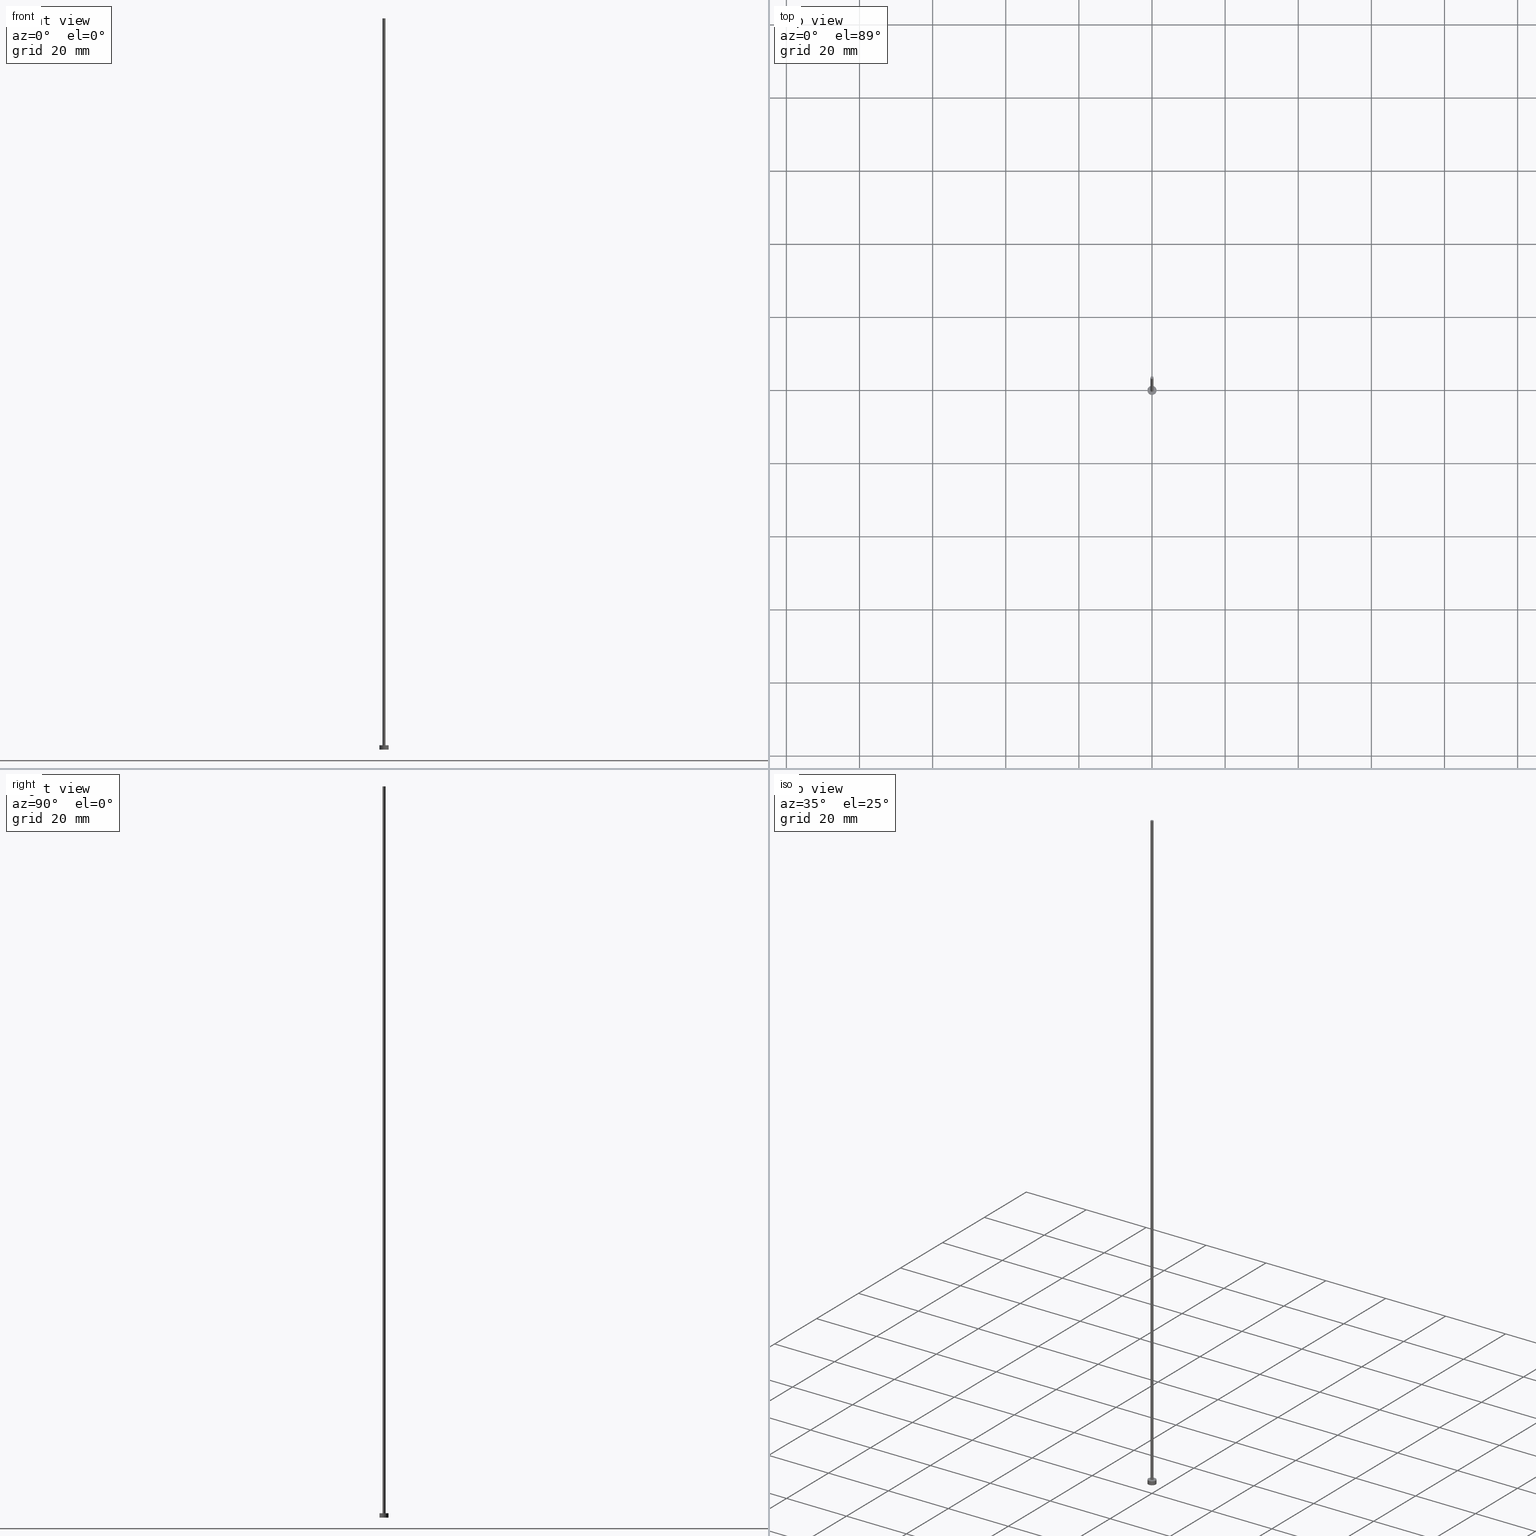
[diagram: canonical four-view strip — front | top / right | iso, engineering-drawing reading convention]
A machine part, canonical four-view strip (front | top / right | iso — engineering-drawing reading convention). The complete STEP part file that produces these views, byte-faithful:
ISO-10303-21;
HEADER;
FILE_DESCRIPTION (( 'STEP AP203' ),
    '1' );
FILE_NAME ('675c.STEP',
    '2026-02-06T12:44:24',
    ( '' ),
    ( '' ),
    'SwSTEP 2.0',
    'SolidWorks 2019',
    '' );
FILE_SCHEMA (( 'CONFIG_CONTROL_DESIGN' ));
ENDSEC;

DATA;
#1 = APPROVAL ( #194, 'NEUR�EN�' ) ;
#2 = LINE ( 'NONE', #25, #108 ) ;
#3 = CIRCLE ( 'NONE', #76, 1.250000000000000000 ) ;
#4 = ORIENTED_EDGE ( 'NONE', *, *, #182, .T. ) ;
#5 = ADVANCED_FACE ( 'NONE', ( #144 ), #219, .T. ) ;
#6 = VERTEX_POINT ( 'NONE', #106 ) ;
#7 = ORIENTED_EDGE ( 'NONE', *, *, #158, .T. ) ;
#8 = VECTOR ( 'NONE', #192, 1000.000000000000000 ) ;
#9 = FACE_OUTER_BOUND ( 'NONE', #169, .T. ) ;
#10 = CARTESIAN_POINT ( 'NONE',  ( 0.000000000000000000, 0.000000000000000000, 0.000000000000000000 ) ) ;
#11 = COORDINATED_UNIVERSAL_TIME_OFFSET ( 1, 0, .AHEAD. ) ;
#12 = DIRECTION ( 'NONE',  ( 0.000000000000000000, 0.000000000000000000, 1.000000000000000000 ) ) ;
#13 = MECHANICAL_CONTEXT ( 'NONE', #145, 'mechanical' ) ;
#14 = VECTOR ( 'NONE', #132, 1000.000000000000000 ) ;
#15 = CARTESIAN_POINT ( 'NONE',  ( -0.4000000000000000222, 0.000000000000000000, 200.0000000000000000 ) ) ;
#16 = DATE_TIME_ROLE ( 'classification_date' ) ;
#17 = DIRECTION ( 'NONE',  ( 0.000000000000000000, 0.000000000000000000, 1.000000000000000000 ) ) ;
#18 = PERSON_AND_ORGANIZATION ( #160, #207 ) ;
#19 = APPROVAL_DATE_TIME ( #42, #1 ) ;
#20 = ADVANCED_FACE ( 'NONE', ( #239 ), #205, .T. ) ;
#21 = SHAPE_DEFINITION_REPRESENTATION ( #177, #66 ) ;
#22 = AXIS2_PLACEMENT_3D ( 'NONE', #120, #136, #191 ) ;
#23 = ORIENTED_EDGE ( 'NONE', *, *, #193, .F. ) ;
#24 = CARTESIAN_POINT ( 'NONE',  ( 0.000000000000000000, 0.000000000000000000, 200.0000000000000000 ) ) ;
#25 = CARTESIAN_POINT ( 'NONE',  ( 1.250000000000000000, 1.530808498934191571E-16, 1.199999999999999956 ) ) ;
#26 = AXIS2_PLACEMENT_3D ( 'NONE', #126, #107, #183 ) ;
#27 = EDGE_CURVE ( 'NONE', #88, #187, #2, .T. ) ;
#28 = DIRECTION ( 'NONE',  ( 0.000000000000000000, 0.000000000000000000, 1.000000000000000000 ) ) ;
#29 = ORIENTED_EDGE ( 'NONE', *, *, #85, .F. ) ;
#30 = CARTESIAN_POINT ( 'NONE',  ( -0.4000000000000000222, 0.000000000000000000, 1.199999999999999956 ) ) ;
#31 = AXIS2_PLACEMENT_3D ( 'NONE', #24, #204, #164 ) ;
#32 = CARTESIAN_POINT ( 'NONE',  ( 0.000000000000000000, 0.000000000000000000, 1.199999999999999956 ) ) ;
#33 = DIRECTION ( 'NONE',  ( 1.000000000000000000, 0.000000000000000000, -0.000000000000000000 ) ) ;
#34 = DIRECTION ( 'NONE',  ( 0.000000000000000000, 0.000000000000000000, 1.000000000000000000 ) ) ;
#35 = DATE_AND_TIME ( #84, #236 ) ;
#36 = CC_DESIGN_PERSON_AND_ORGANIZATION_ASSIGNMENT ( #252, #37, ( #83 ) ) ;
#37 = PERSON_AND_ORGANIZATION_ROLE ( 'design_owner' ) ;
#38 = DIRECTION ( 'NONE',  ( -0.000000000000000000, -0.000000000000000000, -1.000000000000000000 ) ) ;
#39 = APPROVAL_PERSON_ORGANIZATION ( #101, #113, #82 ) ;
#40 = APPROVAL_DATE_TIME ( #216, #113 ) ;
#41 = PRODUCT_RELATED_PRODUCT_CATEGORY ( 'detail', '', ( #83 ) ) ;
#42 = DATE_AND_TIME ( #156, #217 ) ;
#43 = AXIS2_PLACEMENT_3D ( 'NONE', #150, #12, #226 ) ;
#44 = APPROVAL ( #157, 'NEUR�EN�' ) ;
#45 = ORIENTED_EDGE ( 'NONE', *, *, #209, .F. ) ;
#46 = ORIENTED_EDGE ( 'NONE', *, *, #240, .T. ) ;
#47 = ORIENTED_EDGE ( 'NONE', *, *, #240, .F. ) ;
#48 = EDGE_CURVE ( 'NONE', #187, #6, #68, .T. ) ;
#49 = ORIENTED_EDGE ( 'NONE', *, *, #147, .T. ) ;
#50 = AXIS2_PLACEMENT_3D ( 'NONE', #214, #96, #232 ) ;
#51 =( NAMED_UNIT ( * ) PLANE_ANGLE_UNIT ( ) SI_UNIT ( $, .RADIAN. ) );
#52 = APPROVAL_PERSON_ORGANIZATION ( #18, #1, #231 ) ;
#53 = ORIENTED_EDGE ( 'NONE', *, *, #209, .T. ) ;
#54 = CC_DESIGN_PERSON_AND_ORGANIZATION_ASSIGNMENT ( #229, #97, ( #141 ) ) ;
#55 = CARTESIAN_POINT ( 'NONE',  ( 0.000000000000000000, 0.000000000000000000, 200.0000000000000000 ) ) ;
#56 = APPLICATION_CONTEXT ( 'configuration controlled 3d designs of mechanical parts and assemblies' ) ;
#57 = CARTESIAN_POINT ( 'NONE',  ( 0.4000000000000000222, 4.898587196589413075E-17, 200.0000000000000000 ) ) ;
#58 = DIRECTION ( 'NONE',  ( 1.000000000000000000, 0.000000000000000000, 0.000000000000000000 ) ) ;
#59 = CIRCLE ( 'NONE', #143, 0.4000000000000000222 ) ;
#60 = CARTESIAN_POINT ( 'NONE',  ( 0.000000000000000000, 0.000000000000000000, 200.0000000000000000 ) ) ;
#61 = APPROVAL_ROLE ( '' ) ;
#62 = DIRECTION ( 'NONE',  ( 0.000000000000000000, 0.000000000000000000, 1.000000000000000000 ) ) ;
#63 = CC_DESIGN_SECURITY_CLASSIFICATION ( #141, ( #128 ) ) ;
#64 = DATE_TIME_ROLE ( 'creation_date' ) ;
#65 =( GEOMETRIC_REPRESENTATION_CONTEXT ( 3 ) GLOBAL_UNCERTAINTY_ASSIGNED_CONTEXT ( ( #87 ) ) GLOBAL_UNIT_ASSIGNED_CONTEXT ( ( #170, #51, #80 ) ) REPRESENTATION_CONTEXT ( 'NONE', 'WORKASPACE' ) );
#66 = ADVANCED_BREP_SHAPE_REPRESENTATION ( '675c', ( #159, #22 ), #65 ) ;
#67 = ORIENTED_EDGE ( 'NONE', *, *, #27, .T. ) ;
#68 = CIRCLE ( 'NONE', #121, 1.250000000000000000 ) ;
#69 = EDGE_LOOP ( 'NONE', ( #186, #67, #71, #29 ) ) ;
#70 = ORIENTED_EDGE ( 'NONE', *, *, #27, .F. ) ;
#71 = ORIENTED_EDGE ( 'NONE', *, *, #48, .T. ) ;
#72 = DIRECTION ( 'NONE',  ( -0.000000000000000000, -0.000000000000000000, -1.000000000000000000 ) ) ;
#73 = ORIENTED_EDGE ( 'NONE', *, *, #158, .F. ) ;
#74 = CARTESIAN_POINT ( 'NONE',  ( 1.250000000000000000, 1.530808498934191571E-16, 1.199999999999999956 ) ) ;
#75 = FACE_OUTER_BOUND ( 'NONE', #124, .T. ) ;
#76 = AXIS2_PLACEMENT_3D ( 'NONE', #230, #115, #174 ) ;
#77 = PERSON_AND_ORGANIZATION ( #160, #207 ) ;
#78 = PLANE ( 'NONE',  #50 ) ;
#79 = LOCAL_TIME ( 13, 44, 24.00000000000000000, #155 ) ;
#80 =( NAMED_UNIT ( * ) SI_UNIT ( $, .STERADIAN. ) SOLID_ANGLE_UNIT ( ) );
#81 = PLANE ( 'NONE',  #255 ) ;
#82 = APPROVAL_ROLE ( '' ) ;
#83 = PRODUCT ( '675c', '675c', '', ( #13 ) ) ;
#84 = CALENDAR_DATE ( 2026, 6, 2 ) ;
#85 = EDGE_CURVE ( 'NONE', #221, #6, #153, .T. ) ;
#86 = CC_DESIGN_APPROVAL ( #44, ( #128 ) ) ;
#87 = UNCERTAINTY_MEASURE_WITH_UNIT (LENGTH_MEASURE( 1.000000000000000082E-05 ), #170, 'distance_accuracy_value', 'NONE');
#88 = VERTEX_POINT ( 'NONE', #74 ) ;
#89 = AXIS2_PLACEMENT_3D ( 'NONE', #55, #243, #58 ) ;
#90 = DIRECTION ( 'NONE',  ( 0.000000000000000000, 0.000000000000000000, 1.000000000000000000 ) ) ;
#91 = DIRECTION ( 'NONE',  ( 1.000000000000000000, 0.000000000000000000, 0.000000000000000000 ) ) ;
#92 = DIRECTION ( 'NONE',  ( -1.000000000000000000, 0.000000000000000000, 0.000000000000000000 ) ) ;
#93 = CLOSED_SHELL ( 'NONE', ( #5, #20, #253, #189, #103, #166, #235 ) ) ;
#94 = DIRECTION ( 'NONE',  ( -1.000000000000000000, 0.000000000000000000, 0.000000000000000000 ) ) ;
#95 = CALENDAR_DATE ( 2026, 6, 2 ) ;
#96 = DIRECTION ( 'NONE',  ( 0.000000000000000000, 0.000000000000000000, 1.000000000000000000 ) ) ;
#97 = PERSON_AND_ORGANIZATION_ROLE ( 'classification_officer' ) ;
#98 = CARTESIAN_POINT ( 'NONE',  ( 0.000000000000000000, 0.000000000000000000, 1.199999999999999956 ) ) ;
#99 = CC_DESIGN_APPROVAL ( #1, ( #139 ) ) ;
#100 = CC_DESIGN_PERSON_AND_ORGANIZATION_ASSIGNMENT ( #77, #151, ( #128 ) ) ;
#101 = PERSON_AND_ORGANIZATION ( #160, #207 ) ;
#102 = COORDINATED_UNIVERSAL_TIME_OFFSET ( 1, 0, .AHEAD. ) ;
#103 = ADVANCED_FACE ( 'NONE', ( #75 ), #215, .F. ) ;
#104 = PERSON_AND_ORGANIZATION ( #160, #207 ) ;
#105 = VERTEX_POINT ( 'NONE', #154 ) ;
#106 = CARTESIAN_POINT ( 'NONE',  ( -1.250000000000000000, 0.000000000000000000, 0.000000000000000000 ) ) ;
#107 = DIRECTION ( 'NONE',  ( -0.000000000000000000, -0.000000000000000000, -1.000000000000000000 ) ) ;
#108 = VECTOR ( 'NONE', #109, 1000.000000000000000 ) ;
#109 = DIRECTION ( 'NONE',  ( -0.000000000000000000, -0.000000000000000000, -1.000000000000000000 ) ) ;
#110 = ORIENTED_EDGE ( 'NONE', *, *, #85, .T. ) ;
#111 = ORIENTED_EDGE ( 'NONE', *, *, #163, .F. ) ;
#112 = FACE_OUTER_BOUND ( 'NONE', #238, .T. ) ;
#113 = APPROVAL ( #249, 'NEUR�EN�' ) ;
#114 = CARTESIAN_POINT ( 'NONE',  ( -1.250000000000000000, 0.000000000000000000, 1.199999999999999956 ) ) ;
#115 = DIRECTION ( 'NONE',  ( 0.000000000000000000, 0.000000000000000000, 1.000000000000000000 ) ) ;
#116 = PERSON_AND_ORGANIZATION_ROLE ( 'design_supplier' ) ;
#117 = CARTESIAN_POINT ( 'NONE',  ( 0.000000000000000000, 0.000000000000000000, 0.000000000000000000 ) ) ;
#118 = PERSON_AND_ORGANIZATION ( #160, #207 ) ;
#119 = DIRECTION ( 'NONE',  ( 1.000000000000000000, 0.000000000000000000, 0.000000000000000000 ) ) ;
#120 = CARTESIAN_POINT ( 'NONE',  ( 0.000000000000000000, 0.000000000000000000, 0.000000000000000000 ) ) ;
#121 = AXIS2_PLACEMENT_3D ( 'NONE', #185, #90, #167 ) ;
#122 = ORIENTED_EDGE ( 'NONE', *, *, #193, .T. ) ;
#123 = ORIENTED_EDGE ( 'NONE', *, *, #233, .T. ) ;
#124 = EDGE_LOOP ( 'NONE', ( #23, #129 ) ) ;
#125 = EDGE_LOOP ( 'NONE', ( #241, #123, #46, #220 ) ) ;
#126 = CARTESIAN_POINT ( 'NONE',  ( 0.000000000000000000, 0.000000000000000000, 1.199999999999999956 ) ) ;
#127 = VERTEX_POINT ( 'NONE', #57 ) ;
#128 = PRODUCT_DEFINITION_FORMATION_WITH_SPECIFIED_SOURCE ( 'LIBOVOLN�', '', #83, .NOT_KNOWN. ) ;
#129 = ORIENTED_EDGE ( 'NONE', *, *, #48, .F. ) ;
#130 = CC_DESIGN_DATE_AND_TIME_ASSIGNMENT ( #35, #64, ( #139 ) ) ;
#131 = DIRECTION ( 'NONE',  ( 0.000000000000000000, 0.000000000000000000, 1.000000000000000000 ) ) ;
#132 = DIRECTION ( 'NONE',  ( -0.000000000000000000, -0.000000000000000000, -1.000000000000000000 ) ) ;
#133 = CARTESIAN_POINT ( 'NONE',  ( 0.4000000000000000222, 4.898587196589413075E-17, 200.0000000000000000 ) ) ;
#134 = CALENDAR_DATE ( 2026, 6, 2 ) ;
#135 = CARTESIAN_POINT ( 'NONE',  ( -0.4000000000000000222, 0.000000000000000000, 200.0000000000000000 ) ) ;
#136 = DIRECTION ( 'NONE',  ( 0.000000000000000000, 0.000000000000000000, 1.000000000000000000 ) ) ;
#137 = DIRECTION ( 'NONE',  ( 0.000000000000000000, 0.000000000000000000, 1.000000000000000000 ) ) ;
#138 = DESIGN_CONTEXT ( 'detailed design', #56, 'design' ) ;
#139 = PRODUCT_DEFINITION ( 'NEZN�M�', '', #128, #138 ) ;
#140 = CALENDAR_DATE ( 2026, 6, 2 ) ;
#141 = SECURITY_CLASSIFICATION ( '', '', #247 ) ;
#142 = PERSON_AND_ORGANIZATION ( #160, #207 ) ;
#143 = AXIS2_PLACEMENT_3D ( 'NONE', #206, #28, #91 ) ;
#144 = FACE_OUTER_BOUND ( 'NONE', #125, .T. ) ;
#145 = APPLICATION_CONTEXT ( 'configuration controlled 3d designs of mechanical parts and assemblies' ) ;
#146 = VERTEX_POINT ( 'NONE', #30 ) ;
#147 = EDGE_CURVE ( 'NONE', #208, #146, #246, .T. ) ;
#148 = ORIENTED_EDGE ( 'NONE', *, *, #225, .T. ) ;
#149 = LOCAL_TIME ( 13, 44, 24.00000000000000000, #197 ) ;
#150 = CARTESIAN_POINT ( 'NONE',  ( 0.000000000000000000, 0.000000000000000000, 200.0000000000000000 ) ) ;
#151 = PERSON_AND_ORGANIZATION_ROLE ( 'creator' ) ;
#152 = AXIS2_PLACEMENT_3D ( 'NONE', #242, #72, #92 ) ;
#153 = LINE ( 'NONE', #190, #8 ) ;
#154 = CARTESIAN_POINT ( 'NONE',  ( 0.4000000000000000222, 4.898587196589413075E-17, 1.199999999999999956 ) ) ;
#155 = COORDINATED_UNIVERSAL_TIME_OFFSET ( 1, 0, .AHEAD. ) ;
#156 = CALENDAR_DATE ( 2026, 6, 2 ) ;
#157 = APPROVAL_STATUS ( 'not_yet_approved' ) ;
#158 = EDGE_CURVE ( 'NONE', #221, #88, #3, .T. ) ;
#159 = MANIFOLD_SOLID_BREP ( 'P�idat vysunut�m3', #93 ) ;
#160 = PERSON ( 'NEUR�EN�', 'NEUR�EN�', 'NEUR�EN�', ('NEUR�EN�'), ('NEUR�EN�'), ('NEUR�EN�') ) ;
#161 = CIRCLE ( 'NONE', #245, 1.250000000000000000 ) ;
#162 = ORIENTED_EDGE ( 'NONE', *, *, #233, .F. ) ;
#163 = EDGE_CURVE ( 'NONE', #208, #127, #178, .T. ) ;
#164 = DIRECTION ( 'NONE',  ( -1.000000000000000000, 0.000000000000000000, 0.000000000000000000 ) ) ;
#165 = CC_DESIGN_PERSON_AND_ORGANIZATION_ASSIGNMENT ( #118, #116, ( #128 ) ) ;
#166 = ADVANCED_FACE ( 'NONE', ( #112 ), #188, .T. ) ;
#167 = DIRECTION ( 'NONE',  ( 1.000000000000000000, 0.000000000000000000, 0.000000000000000000 ) ) ;
#168 = CYLINDRICAL_SURFACE ( 'NONE', #152, 1.250000000000000000 ) ;
#169 = EDGE_LOOP ( 'NONE', ( #70, #73, #110, #122 ) ) ;
#170 =( LENGTH_UNIT ( ) NAMED_UNIT ( * ) SI_UNIT ( .MILLI., .METRE. ) );
#171 = CC_DESIGN_DATE_AND_TIME_ASSIGNMENT ( #213, #16, ( #141 ) ) ;
#172 = CARTESIAN_POINT ( 'NONE',  ( 0.000000000000000000, 0.000000000000000000, 200.0000000000000000 ) ) ;
#173 = LOCAL_TIME ( 13, 44, 24.00000000000000000, #11 ) ;
#174 = DIRECTION ( 'NONE',  ( 1.000000000000000000, 0.000000000000000000, 0.000000000000000000 ) ) ;
#175 = DIRECTION ( 'NONE',  ( 1.000000000000000000, 0.000000000000000000, 0.000000000000000000 ) ) ;
#176 = DATE_AND_TIME ( #95, #173 ) ;
#177 = PRODUCT_DEFINITION_SHAPE ( 'NONE', 'NONE',  #139 ) ;
#178 = CIRCLE ( 'NONE', #43, 0.4000000000000000222 ) ;
#179 = LINE ( 'NONE', #133, #202 ) ;
#180 = APPLICATION_PROTOCOL_DEFINITION ( 'international standard', 'config_control_design', 1994, #56 ) ;
#181 = CC_DESIGN_PERSON_AND_ORGANIZATION_ASSIGNMENT ( #104, #234, ( #139 ) ) ;
#182 = EDGE_CURVE ( 'NONE', #88, #221, #161, .T. ) ;
#183 = DIRECTION ( 'NONE',  ( -1.000000000000000000, 0.000000000000000000, 0.000000000000000000 ) ) ;
#184 = AXIS2_PLACEMENT_3D ( 'NONE', #60, #38, #94 ) ;
#185 = CARTESIAN_POINT ( 'NONE',  ( 0.000000000000000000, 0.000000000000000000, 0.000000000000000000 ) ) ;
#186 = ORIENTED_EDGE ( 'NONE', *, *, #182, .F. ) ;
#187 = VERTEX_POINT ( 'NONE', #228 ) ;
#188 = CYLINDRICAL_SURFACE ( 'NONE', #184, 0.4000000000000000222 ) ;
#189 = ADVANCED_FACE ( 'NONE', ( #227, #199 ), #78, .T. ) ;
#190 = CARTESIAN_POINT ( 'NONE',  ( -1.250000000000000000, 0.000000000000000000, 1.199999999999999956 ) ) ;
#191 = DIRECTION ( 'NONE',  ( 1.000000000000000000, 0.000000000000000000, 0.000000000000000000 ) ) ;
#192 = DIRECTION ( 'NONE',  ( -0.000000000000000000, -0.000000000000000000, -1.000000000000000000 ) ) ;
#193 = EDGE_CURVE ( 'NONE', #6, #187, #196, .T. ) ;
#194 = APPROVAL_STATUS ( 'not_yet_approved' ) ;
#195 = DIRECTION ( 'NONE',  ( 1.000000000000000000, 0.000000000000000000, 0.000000000000000000 ) ) ;
#196 = CIRCLE ( 'NONE', #223, 1.250000000000000000 ) ;
#197 = COORDINATED_UNIVERSAL_TIME_OFFSET ( 1, 0, .AHEAD. ) ;
#198 = APPROVAL_PERSON_ORGANIZATION ( #142, #44, #61 ) ;
#199 = FACE_OUTER_BOUND ( 'NONE', #237, .T. ) ;
#200 = APPLICATION_PROTOCOL_DEFINITION ( 'international standard', 'config_control_design', 1994, #145 ) ;
#201 = CIRCLE ( 'NONE', #89, 0.4000000000000000222 ) ;
#202 = VECTOR ( 'NONE', #212, 1000.000000000000000 ) ;
#203 = EDGE_LOOP ( 'NONE', ( #224, #148 ) ) ;
#204 = DIRECTION ( 'NONE',  ( -0.000000000000000000, -0.000000000000000000, -1.000000000000000000 ) ) ;
#205 = CYLINDRICAL_SURFACE ( 'NONE', #26, 1.250000000000000000 ) ;
#206 = CARTESIAN_POINT ( 'NONE',  ( 0.000000000000000000, 0.000000000000000000, 1.199999999999999956 ) ) ;
#207 = ORGANIZATION ( 'NEUR�EN�', 'NEUR�EN�', '' ) ;
#208 = VERTEX_POINT ( 'NONE', #15 ) ;
#209 = EDGE_CURVE ( 'NONE', #146, #105, #254, .T. ) ;
#210 = DIRECTION ( 'NONE',  ( 1.000000000000000000, 0.000000000000000000, -0.000000000000000000 ) ) ;
#211 = AXIS2_PLACEMENT_3D ( 'NONE', #98, #17, #175 ) ;
#212 = DIRECTION ( 'NONE',  ( -0.000000000000000000, -0.000000000000000000, -1.000000000000000000 ) ) ;
#213 = DATE_AND_TIME ( #134, #149 ) ;
#214 = CARTESIAN_POINT ( 'NONE',  ( 0.000000000000000000, 0.000000000000000000, 1.199999999999999956 ) ) ;
#215 = PLANE ( 'NONE',  #251 ) ;
#216 = DATE_AND_TIME ( #140, #79 ) ;
#217 = LOCAL_TIME ( 13, 44, 24.00000000000000000, #250 ) ;
#218 = CC_DESIGN_APPROVAL ( #113, ( #141 ) ) ;
#219 = CYLINDRICAL_SURFACE ( 'NONE', #31, 0.4000000000000000222 ) ;
#220 = ORIENTED_EDGE ( 'NONE', *, *, #147, .F. ) ;
#221 = VERTEX_POINT ( 'NONE', #114 ) ;
#222 = EDGE_LOOP ( 'NONE', ( #45, #47 ) ) ;
#223 = AXIS2_PLACEMENT_3D ( 'NONE', #117, #34, #195 ) ;
#224 = ORIENTED_EDGE ( 'NONE', *, *, #163, .T. ) ;
#225 = EDGE_CURVE ( 'NONE', #127, #208, #201, .T. ) ;
#226 = DIRECTION ( 'NONE',  ( 1.000000000000000000, 0.000000000000000000, 0.000000000000000000 ) ) ;
#227 = FACE_BOUND ( 'NONE', #222, .T. ) ;
#228 = CARTESIAN_POINT ( 'NONE',  ( 1.250000000000000000, 1.530808498934191571E-16, 0.000000000000000000 ) ) ;
#229 = PERSON_AND_ORGANIZATION ( #160, #207 ) ;
#230 = CARTESIAN_POINT ( 'NONE',  ( 0.000000000000000000, 0.000000000000000000, 1.199999999999999956 ) ) ;
#231 = APPROVAL_ROLE ( '' ) ;
#232 = DIRECTION ( 'NONE',  ( 1.000000000000000000, 0.000000000000000000, -0.000000000000000000 ) ) ;
#233 = EDGE_CURVE ( 'NONE', #127, #105, #179, .T. ) ;
#234 = PERSON_AND_ORGANIZATION_ROLE ( 'creator' ) ;
#235 = ADVANCED_FACE ( 'NONE', ( #248 ), #81, .T. ) ;
#236 = LOCAL_TIME ( 13, 44, 24.00000000000000000, #102 ) ;
#237 = EDGE_LOOP ( 'NONE', ( #7, #4 ) ) ;
#238 = EDGE_LOOP ( 'NONE', ( #162, #111, #49, #53 ) ) ;
#239 = FACE_OUTER_BOUND ( 'NONE', #69, .T. ) ;
#240 = EDGE_CURVE ( 'NONE', #105, #146, #59, .T. ) ;
#241 = ORIENTED_EDGE ( 'NONE', *, *, #225, .F. ) ;
#242 = CARTESIAN_POINT ( 'NONE',  ( 0.000000000000000000, 0.000000000000000000, 1.199999999999999956 ) ) ;
#243 = DIRECTION ( 'NONE',  ( 0.000000000000000000, 0.000000000000000000, 1.000000000000000000 ) ) ;
#244 = APPROVAL_DATE_TIME ( #176, #44 ) ;
#245 = AXIS2_PLACEMENT_3D ( 'NONE', #32, #131, #119 ) ;
#246 = LINE ( 'NONE', #135, #14 ) ;
#247 = SECURITY_CLASSIFICATION_LEVEL ( 'unclassified' ) ;
#248 = FACE_OUTER_BOUND ( 'NONE', #203, .T. ) ;
#249 = APPROVAL_STATUS ( 'not_yet_approved' ) ;
#250 = COORDINATED_UNIVERSAL_TIME_OFFSET ( 1, 0, .AHEAD. ) ;
#251 = AXIS2_PLACEMENT_3D ( 'NONE', #10, #137, #210 ) ;
#252 = PERSON_AND_ORGANIZATION ( #160, #207 ) ;
#253 = ADVANCED_FACE ( 'NONE', ( #9 ), #168, .T. ) ;
#254 = CIRCLE ( 'NONE', #211, 0.4000000000000000222 ) ;
#255 = AXIS2_PLACEMENT_3D ( 'NONE', #172, #62, #33 ) ;
ENDSEC;
END-ISO-10303-21;
